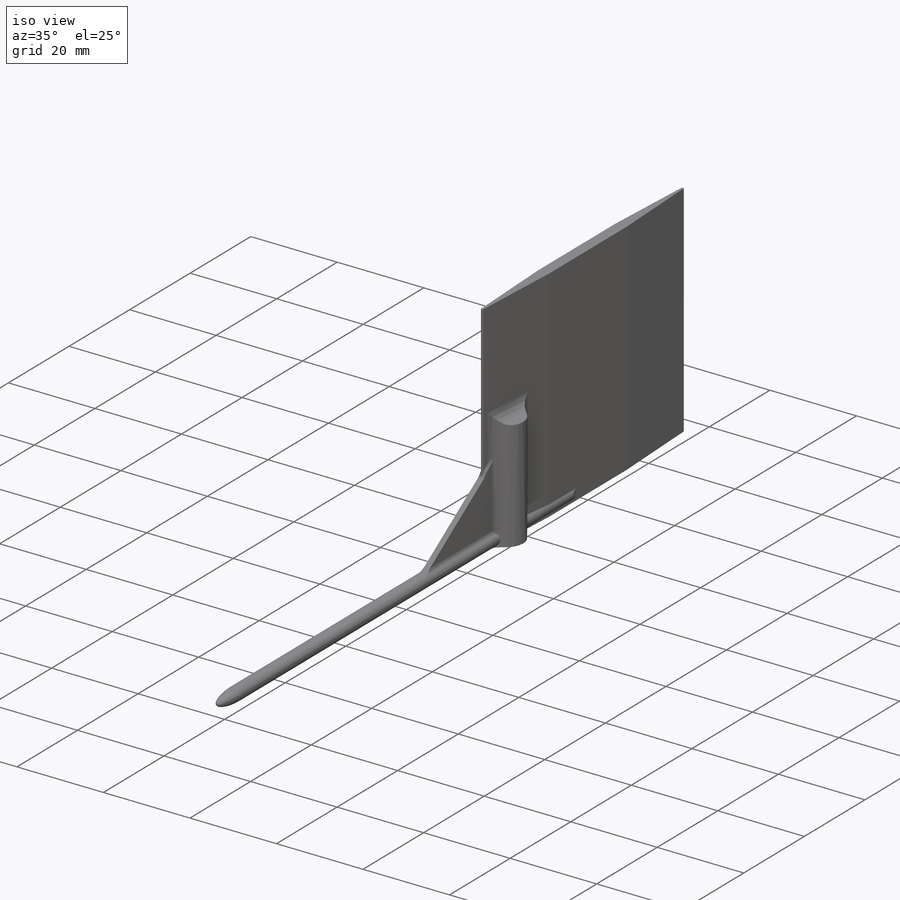
[diagram: iso view]
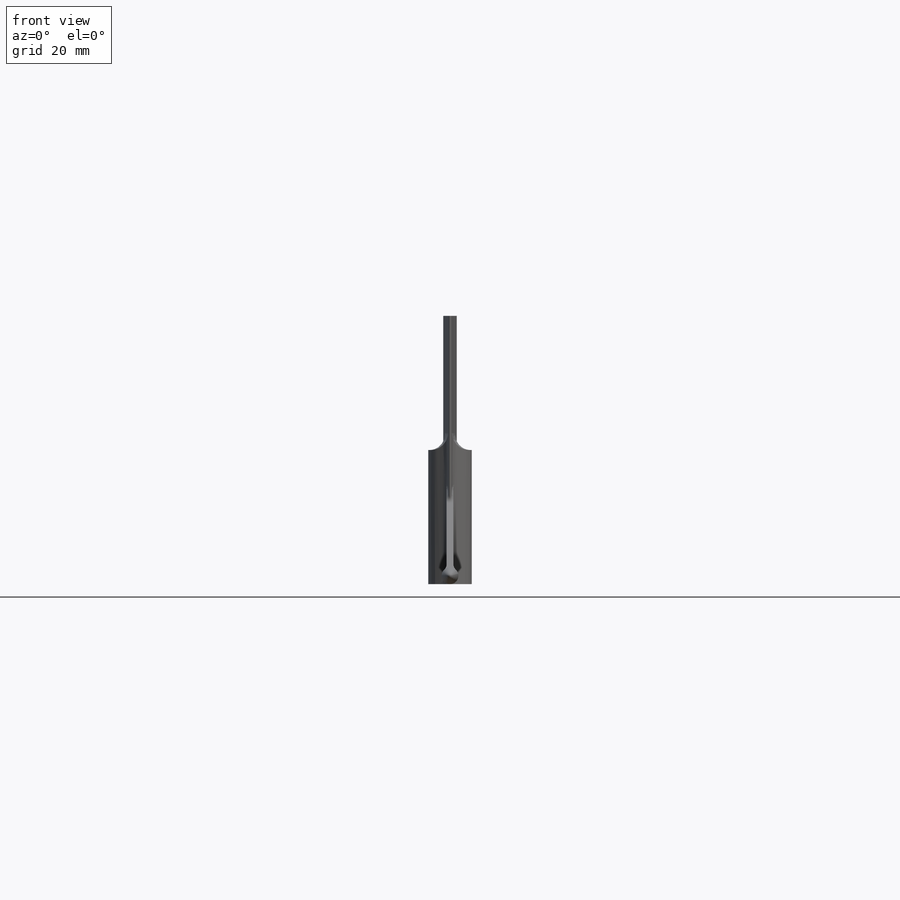
[diagram: front view]
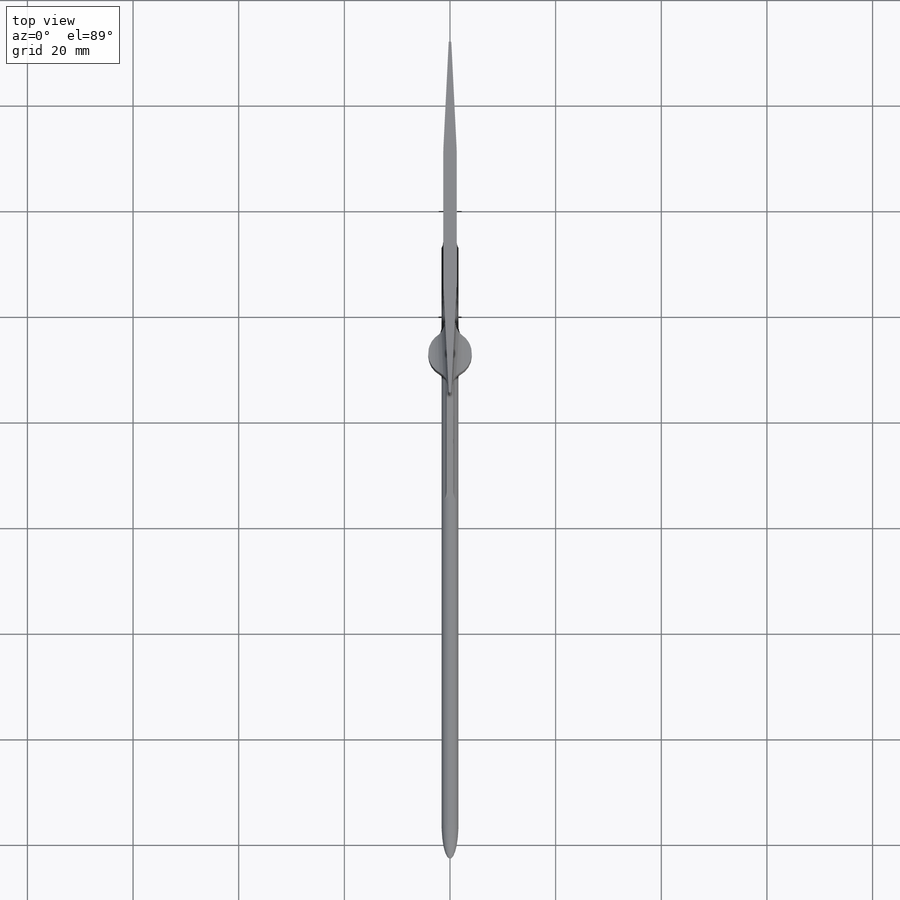
[diagram: top view]
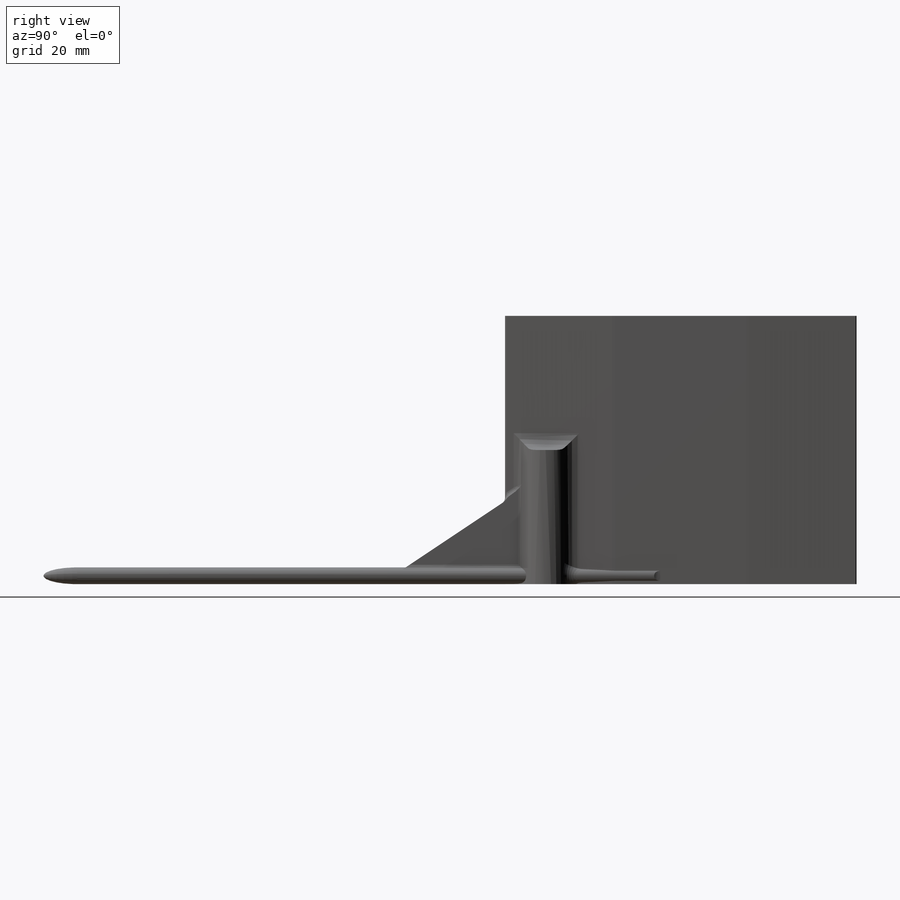
[diagram: right view]
SOLIDWORKS PART (.sldprt)
format: sldprt  version: not decoded by parser v0  size: 586,240 bytes
history: native  units: mm
features: sketch x6, fillet x4, extrude x3, material x1, cut_extrude x1, dome x1 (+11 scaffold rows collapsed)
feature tree (27):
  scaffold x11  (default folders/planes/origin — collapsed)
  material  "Material <not specified>"
  sketch  "Sketch1"  dims[c1.D5=0.254mm c1.D1=1.5875mm c1.D2=76.2mm c1.D3=25.4mm c2.D1=25.4mm c2.D4=1.27mm c2.D5=~25.412399mm]
  extrude  "Boss-Extrude1"  Depth=50.8mm
  fillet  "Fillet1"  Radius=12.7mm
  sketch  "Sketch3"  dims[D1=3.175mm D2=1.5875mm]
  extrude  "Boss-Extrude2"  Depth=76.2mm
  sketch  "Sketch4"  dims[D1=6.35mm D3=8.255mm D2=12.7mm]
  sketch  "Sketch5"
  extrude  "Boss-Extrude3"  Depth=25.4mm
  cut_extrude  "Cut-Extrude1"  [1 undecoded]
  sketch  "Sketch4<3>"  dims[D1=21.59mm]
  fillet  "Fillet6"  Radius=3.175mm
  fillet  "Fillet7"  Radius=2.54mm
  dome  "Dome1"
  sketch  "Sketch6"  dims[c1.D1=12.7mm c1.D2=19.05mm c2.D1=1.27mm]
  fillet  "Fillet8"  Radius=1.27mm
decode coverage: 12 of 15 modeling features carry decoded parameters
note: ~ marks probable driven/reference dimensions
note: 1 parameter value undecoded
note: suppression state not decoded; provenance and decode notes live in map.json
